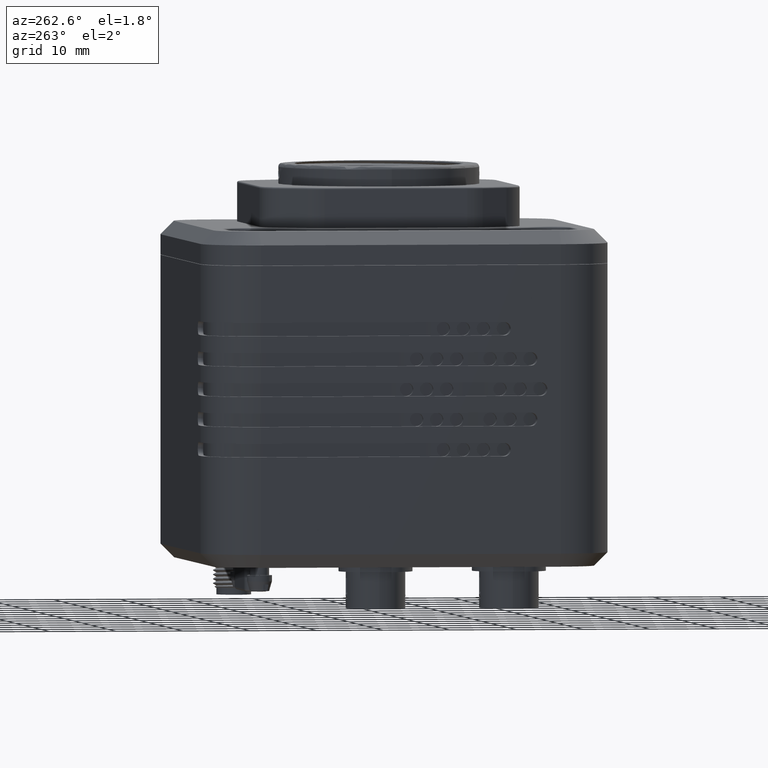
[diagram: clean part render]
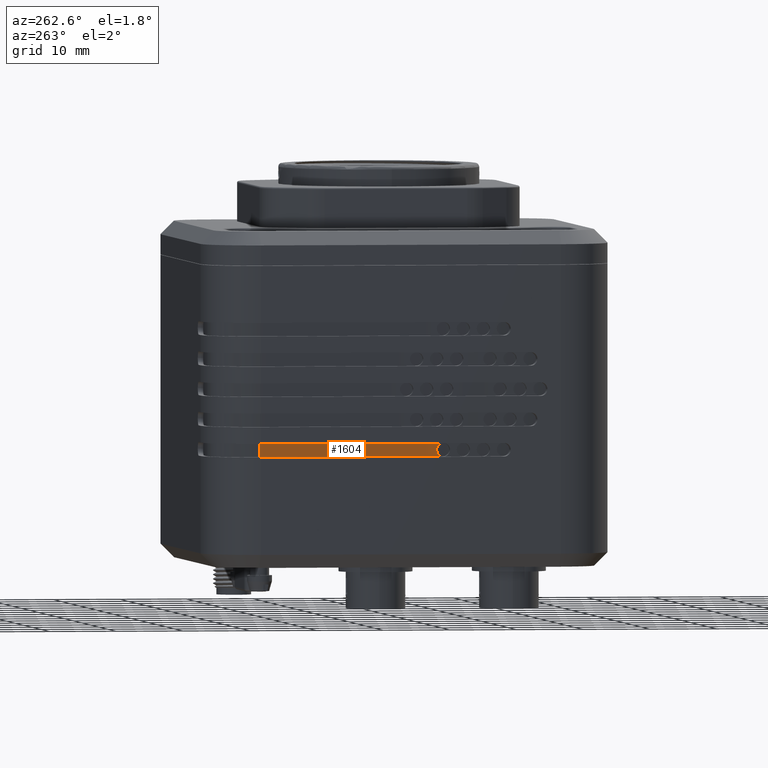
[diagram: same view with one face highlighted and labeled with its STEP entity id]
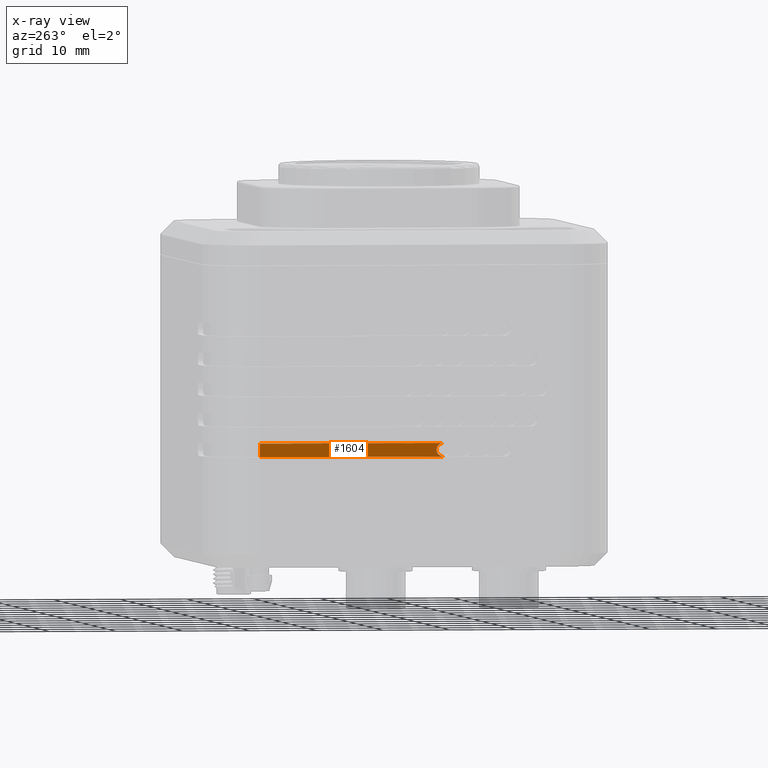
[diagram: x-ray of the same camera — body ghosted, the highlighted face saturated]
A machine part, auxiliary view. The second image highlights one B-rep face of the part: STEP entity #1604.
The next image is the same camera in x-ray: the body ghosted, the highlighted face saturated — about 0% of this face is hidden behind the body in this view.
In plain terms, the highlighted planar face has unit normal (1, 0, 0).
Its self-contained STEP definition (entity closure, byte-faithful):
#840 = VECTOR ( 'NONE', #1558, 1000.000000000000000 ) ;
#1558 = DIRECTION ( 'NONE',  ( 0.000000000000000000, 1.000000000000000000, 0.000000000000000000 ) ) ;
#1604 = ADVANCED_FACE ( 'NONE', ( #51099 ), #57748, .F. ) ;
#1684 = ORIENTED_EDGE ( 'NONE', *, *, #26540, .F. ) ;
#3150 = CARTESIAN_POINT ( 'NONE',  ( -16.78113167306000264, 42.86178579707100056, 4.033075321113001266 ) ) ;
#5974 = DIRECTION ( 'NONE',  ( 0.000000000000000000, -1.000000000000000000, 0.000000000000000000 ) ) ;
#6357 = DIRECTION ( 'NONE',  ( 1.000000000000000000, 0.000000000000000000, 0.000000000000000000 ) ) ;
#8900 = LINE ( 'NONE', #54739, #69750 ) ;
#10662 = EDGE_CURVE ( 'NONE', #61410, #52306, #71469, .T. ) ;
#14230 = CARTESIAN_POINT ( 'NONE',  ( -16.78113167306000264, 15.36178579707099878, 3.033075321113000378 ) ) ;
#21247 = LINE ( 'NONE', #3150, #60285 ) ;
#24208 = AXIS2_PLACEMENT_3D ( 'NONE', #61817, #39600, #5974 ) ;
#26540 = EDGE_CURVE ( 'NONE', #68450, #56580, #8900, .T. ) ;
#26588 = CARTESIAN_POINT ( 'NONE',  ( -16.78113167306000264, 16.36178579707100056, 3.033075321113000378 ) ) ;
#27178 = CARTESIAN_POINT ( 'NONE',  ( -16.78113167306000264, 42.86178579707100056, 2.033075321112999490 ) ) ;
#27273 = ORIENTED_EDGE ( 'NONE', *, *, #10662, .F. ) ;
#29630 = CARTESIAN_POINT ( 'NONE',  ( -16.78113167306000264, 28.10423460742294210, 2.033075321112999490 ) ) ;
#29940 = EDGE_CURVE ( 'NONE', #38916, #61410, #47629, .T. ) ;
#33128 = CARTESIAN_POINT ( 'NONE',  ( -16.78113167306000264, 15.36178579707099878, 2.033075321112999490 ) ) ;
#36273 = AXIS2_PLACEMENT_3D ( 'NONE', #29630, #6357, #52187 ) ;
#38916 = VERTEX_POINT ( 'NONE', #47207 ) ;
#39600 = DIRECTION ( 'NONE',  ( -1.000000000000000000, 0.000000000000000000, 0.000000000000000000 ) ) ;
#40060 = ORIENTED_EDGE ( 'NONE', *, *, #29940, .F. ) ;
#42676 = DIRECTION ( 'NONE',  ( -1.000000000000000000, 0.000000000000000000, 0.000000000000000000 ) ) ;
#45977 = EDGE_CURVE ( 'NONE', #52306, #68450, #46671, .T. ) ;
#46671 = LINE ( 'NONE', #69254, #840 ) ;
#47207 = CARTESIAN_POINT ( 'NONE',  ( -16.78113167306000264, 15.36178579707099878, 4.033075321113001266 ) ) ;
#47629 = CIRCLE ( 'NONE', #67727, 1.000000000000000888 ) ;
#48952 = DIRECTION ( 'NONE',  ( 0.000000000000000000, -1.000000000000000000, 0.000000000000000000 ) ) ;
#51099 = FACE_OUTER_BOUND ( 'NONE', #56774, .T. ) ;
#52187 = DIRECTION ( 'NONE',  ( 0.000000000000000000, 1.000000000000000000, 0.000000000000000000 ) ) ;
#52306 = VERTEX_POINT ( 'NONE', #33128 ) ;
#54007 = DIRECTION ( 'NONE',  ( 0.000000000000000000, 0.000000000000000000, 1.000000000000000000 ) ) ;
#54589 = ORIENTED_EDGE ( 'NONE', *, *, #45977, .F. ) ;
#54646 = EDGE_CURVE ( 'NONE', #38916, #56580, #21247, .T. ) ;
#54739 = CARTESIAN_POINT ( 'NONE',  ( -16.78113167306000264, 42.86178579707100056, 2.033075321112999490 ) ) ;
#55886 = ORIENTED_EDGE ( 'NONE', *, *, #54646, .T. ) ;
#56580 = VERTEX_POINT ( 'NONE', #69936 ) ;
#56774 = EDGE_LOOP ( 'NONE', ( #40060, #55886, #1684, #54589, #27273 ) ) ;
#57748 = PLANE ( 'NONE',  #36273 ) ;
#60285 = VECTOR ( 'NONE', #71189, 1000.000000000000000 ) ;
#61410 = VERTEX_POINT ( 'NONE', #26588 ) ;
#61817 = CARTESIAN_POINT ( 'NONE',  ( -16.78113167306000264, 15.36178579707099878, 3.033075321113000378 ) ) ;
#67727 = AXIS2_PLACEMENT_3D ( 'NONE', #14230, #42676, #48952 ) ;
#68450 = VERTEX_POINT ( 'NONE', #27178 ) ;
#69254 = CARTESIAN_POINT ( 'NONE',  ( -16.78113167306000264, 42.86178579707100056, 2.033075321112999490 ) ) ;
#69750 = VECTOR ( 'NONE', #54007, 1000.000000000000000 ) ;
#69936 = CARTESIAN_POINT ( 'NONE',  ( -16.78113167306000264, 42.86178579707100056, 4.033075321113001266 ) ) ;
#71189 = DIRECTION ( 'NONE',  ( 0.000000000000000000, 1.000000000000000000, 0.000000000000000000 ) ) ;
#71469 = CIRCLE ( 'NONE', #24208, 1.000000000000000888 ) ;